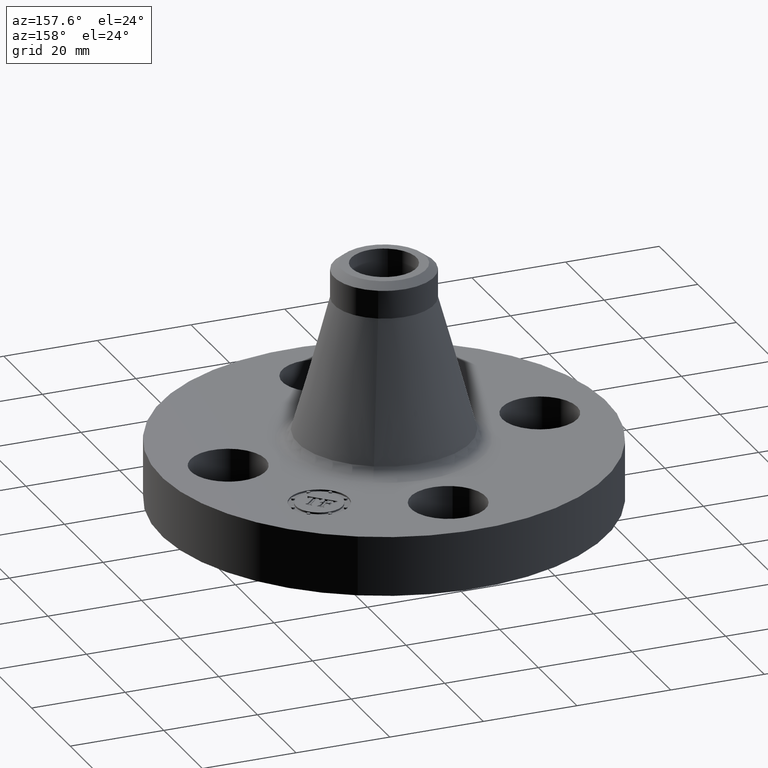
[diagram: clean part render]
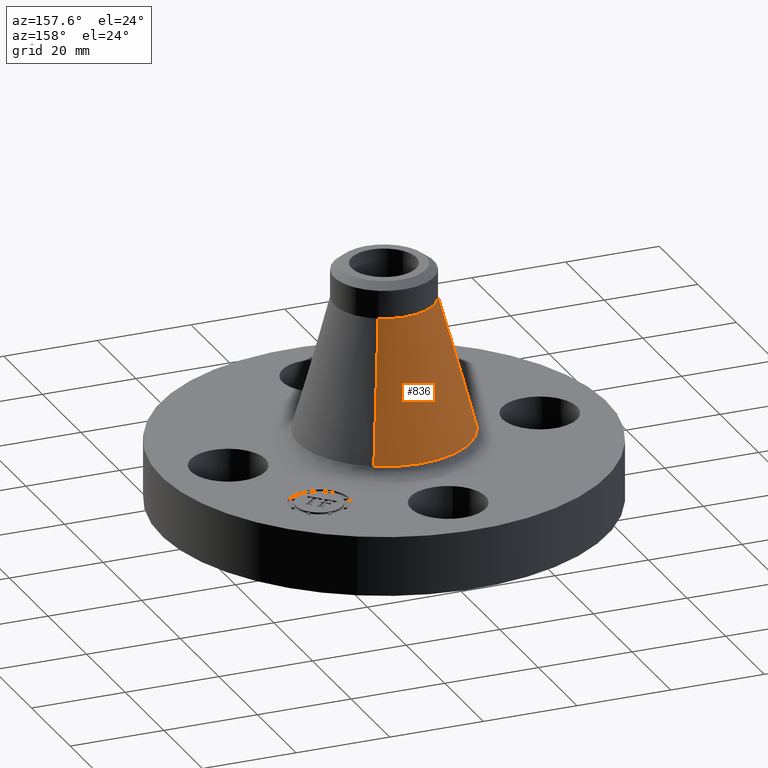
[diagram: same view with one face highlighted and labeled with its STEP entity id]
A machine part, auxiliary view. The second image highlights one B-rep face of the part: STEP entity #836.
In plain terms, the highlighted conical surface has half-angle 15.238 deg.
Its self-contained STEP definition (entity closure, byte-faithful):
#648=AXIS2_PLACEMENT_3D('Circle Axis2P3D',#646,#647,$) ;
#809=AXIS2_PLACEMENT_3D('Cone Axis2P3D',#806,#807,#808) ;
#820=AXIS2_PLACEMENT_3D('Circle Axis2P3D',#818,#819,$) ;
#643=CARTESIAN_POINT('Vertex',(-0.348016189981,-0.637039362717,0.5884599252)) ;
#646=CARTESIAN_POINT('Axis2P3D Location',(0.,0.,0.5884599252)) ;
#650=CARTESIAN_POINT('Vertex',(0.348016189981,0.637039362717,0.5884599252)) ;
#806=CARTESIAN_POINT('Axis2P3D Location',(0.,0.,1.71140190821)) ;
#811=CARTESIAN_POINT('Line Origine',(-0.274687458098,-0.502812019356,1.14993091671)) ;
#815=CARTESIAN_POINT('Vertex',(-0.201358726215,-0.368584675996,1.71140190821)) ;
#818=CARTESIAN_POINT('Axis2P3D Location',(0.,0.,1.71140190821)) ;
#822=CARTESIAN_POINT('Vertex',(0.201358726215,0.368584675996,1.71140190821)) ;
#825=CARTESIAN_POINT('Line Origine',(0.274687458098,0.502812019356,1.14993091671)) ;
#647=DIRECTION('Axis2P3D Direction',(-0.,0.,-0.0393700787402)) ;
#807=DIRECTION('Axis2P3D Direction',(0.,0.,-0.0393700787402)) ;
#808=DIRECTION('Axis2P3D XDirection',(-0.0188750212049,-0.0345504945626,0.)) ;
#812=DIRECTION('Vector Direction',(-0.00496099650577,-0.00908104319126,-0.0379858693231)) ;
#819=DIRECTION('Axis2P3D Direction',(-0.,0.,-0.0393700787402)) ;
#826=DIRECTION('Vector Direction',(0.00496099650577,0.00908104319126,-0.0379858693231)) ;
#813=VECTOR('Line Direction',#812,0.0393700787402) ;
#827=VECTOR('Line Direction',#826,0.0393700787402) ;
#831=ORIENTED_EDGE('',*,*,#652,.F.) ;
#832=ORIENTED_EDGE('',*,*,#817,.T.) ;
#833=ORIENTED_EDGE('',*,*,#824,.T.) ;
#834=ORIENTED_EDGE('',*,*,#829,.F.) ;
#836=ADVANCED_FACE('PartBody',(#835),#810,.T.) ;
#649=CIRCLE('generated circle',#648,0.725902485283) ;
#821=CIRCLE('generated circle',#820,0.420000000002) ;
#810=CONICAL_SURFACE('Cone',#809,0.420000000002,0.265958259364) ;
#652=EDGE_CURVE('',#644,#651,#649,.T.) ;
#817=EDGE_CURVE('',#644,#816,#814,.F.) ;
#824=EDGE_CURVE('',#816,#823,#821,.T.) ;
#829=EDGE_CURVE('',#651,#823,#828,.F.) ;
#830=EDGE_LOOP('',(#831,#832,#833,#834)) ;
#835=FACE_OUTER_BOUND('',#830,.T.) ;
#814=LINE('Line',#811,#813) ;
#828=LINE('Line',#825,#827) ;
#644=VERTEX_POINT('',#643) ;
#651=VERTEX_POINT('',#650) ;
#816=VERTEX_POINT('',#815) ;
#823=VERTEX_POINT('',#822) ;